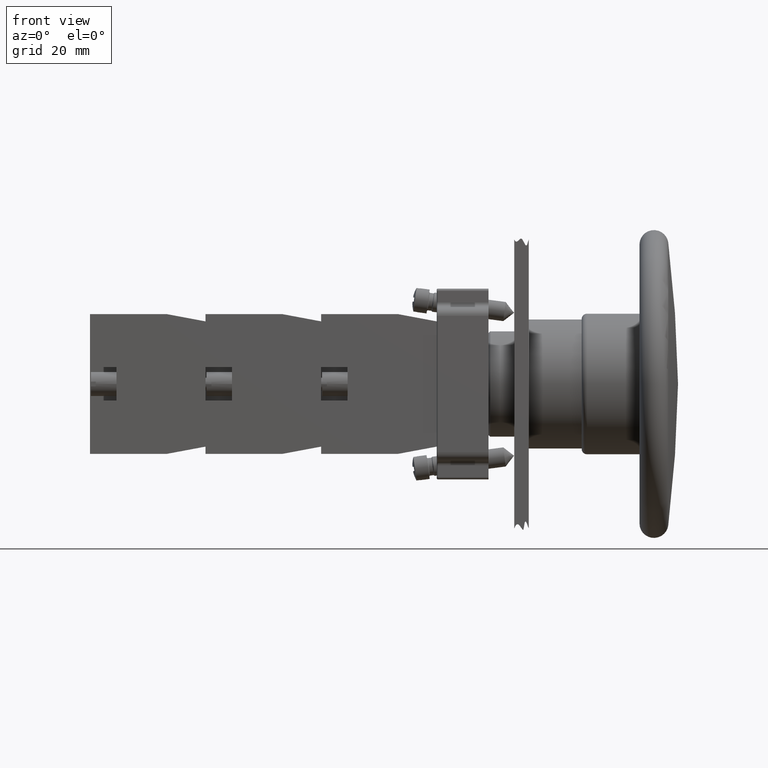
[diagram: clean part render]
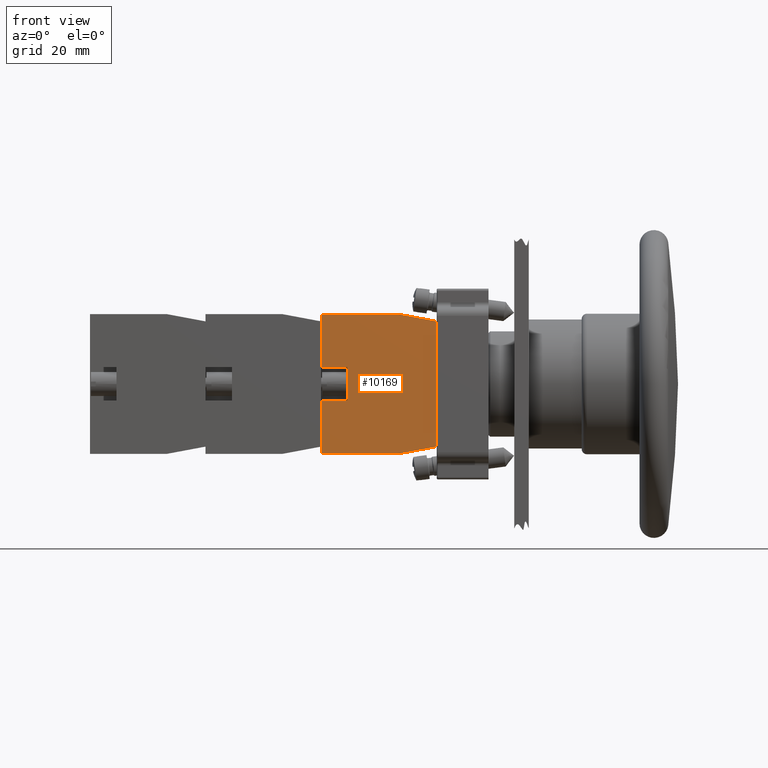
[diagram: same view with one face highlighted and labeled with its STEP entity id]
A machine part, front view. The second image highlights one B-rep face of the part: STEP entity #10169.
In plain terms, the highlighted planar face has unit normal (-0, -1, 0).
Its self-contained STEP definition (entity closure, byte-faithful):
#8472=CARTESIAN_POINT('',(-44.936741828918457,7.797073323279626,14.699999999999999));
#8473=VERTEX_POINT('',#8472);
#8480=CARTESIAN_POINT('',(-44.936741828918471,23.797073323279623,14.699999999999999));
#8481=VERTEX_POINT('',#8480);
#8482=CARTESIAN_POINT('',(-44.936741828918457,7.797073323279626,14.699999999999999));
#8483=DIRECTION('',(0.0,1.0,0.0));
#8484=VECTOR('',#8483,15.999999999999996);
#8485=LINE('',#8482,#8484);
#8486=EDGE_CURVE('',#8473,#8481,#8485,.T.);
#8553=CARTESIAN_POINT('',(-43.436741828918457,-0.202926676720380,14.699999999999999));
#8554=VERTEX_POINT('',#8553);
#8561=CARTESIAN_POINT('',(-43.436741828918457,-0.202926676720380,14.699999999999999));
#8562=DIRECTION('',(-0.184288535050185,0.982872186934322,0.0));
#8563=VECTOR('',#8562,8.139410298049860);
#8564=LINE('',#8561,#8563);
#8565=EDGE_CURVE('',#8554,#8473,#8564,.T.);
#8704=CARTESIAN_POINT('',(-17.436741828918457,-0.202926676720377,14.699999999999999));
#8705=VERTEX_POINT('',#8704);
#8712=CARTESIAN_POINT('',(-17.436741828918457,-0.202926676720377,14.699999999999999));
#8713=DIRECTION('',(-1.0,0.0,0.0));
#8714=VECTOR('',#8713,26.0);
#8715=LINE('',#8712,#8714);
#8716=EDGE_CURVE('',#8705,#8554,#8715,.T.);
#8797=CARTESIAN_POINT('',(-15.936741828918466,7.797073323279626,14.699999999999999));
#8798=VERTEX_POINT('',#8797);
#8805=CARTESIAN_POINT('',(-15.936741828918466,7.797073323279626,14.699999999999999));
#8806=DIRECTION('',(-0.184288535050184,-0.982872186934322,0.0));
#8807=VECTOR('',#8806,8.139410298049855);
#8808=LINE('',#8805,#8807);
#8809=EDGE_CURVE('',#8798,#8705,#8808,.T.);
#9904=CARTESIAN_POINT('',(-26.936741828918468,18.297073323279626,14.699999999999999));
#9905=VERTEX_POINT('',#9904);
#9914=CARTESIAN_POINT('',(-26.936741828918468,23.797073323279626,14.699999999999999));
#9915=VERTEX_POINT('',#9914);
#9916=CARTESIAN_POINT('',(-26.936741828918468,23.797073323279626,14.699999999999999));
#9917=DIRECTION('',(0.0,-1.0,0.0));
#9918=VECTOR('',#9917,5.500000000000000);
#9919=LINE('',#9916,#9918);
#9920=EDGE_CURVE('',#9915,#9905,#9919,.T.);
#9975=CARTESIAN_POINT('',(-33.936741828918464,18.297073323279619,14.699999999999999));
#9976=VERTEX_POINT('',#9975);
#9984=CARTESIAN_POINT('',(-33.936741828918464,23.797073323279623,14.699999999999999));
#9985=VERTEX_POINT('',#9984);
#9992=CARTESIAN_POINT('',(-33.936741828918464,18.297073323279619,14.699999999999999));
#9993=DIRECTION('',(0.0,1.0,0.0));
#9994=VECTOR('',#9993,5.500000000000004);
#9995=LINE('',#9992,#9994);
#9996=EDGE_CURVE('',#9976,#9985,#9995,.T.);
#10009=CARTESIAN_POINT('',(-26.936741828918468,18.297073323279626,14.699999999999999));
#10010=DIRECTION('',(-1.0,0.0,0.0));
#10011=VECTOR('',#10010,6.999999999999996);
#10012=LINE('',#10009,#10011);
#10013=EDGE_CURVE('',#9905,#9976,#10012,.T.);
#10029=CARTESIAN_POINT('',(-15.936741828918466,23.797073323279626,14.699999999999999));
#10030=VERTEX_POINT('',#10029);
#10031=CARTESIAN_POINT('',(-26.936741828918468,23.797073323279626,14.699999999999999));
#10032=DIRECTION('',(1.0,0.0,0.0));
#10033=VECTOR('',#10032,11.000000000000002);
#10034=LINE('',#10031,#10033);
#10035=EDGE_CURVE('',#9915,#10030,#10034,.T.);
#10052=CARTESIAN_POINT('',(-44.936741828918471,23.797073323279623,14.699999999999999));
#10053=DIRECTION('',(1.0,0.0,0.0));
#10054=VECTOR('',#10053,11.000000000000007);
#10055=LINE('',#10052,#10054);
#10056=EDGE_CURVE('',#8481,#9985,#10055,.T.);
#10100=CARTESIAN_POINT('',(-15.936741828918466,23.797073323279626,14.699999999999999));
#10101=DIRECTION('',(0.0,-1.0,0.0));
#10102=VECTOR('',#10101,16.0);
#10103=LINE('',#10100,#10102);
#10104=EDGE_CURVE('',#10030,#8798,#10103,.T.);
#10152=CARTESIAN_POINT('',(-30.436741828918457,12.124046801833057,14.699999999999999));
#10153=DIRECTION('',(0.0,0.0,1.0));
#10154=DIRECTION('',(1.0,0.0,0.0));
#10155=AXIS2_PLACEMENT_3D('',#10152,#10153,#10154);
#10156=PLANE('',#10155);
#10157=ORIENTED_EDGE('',*,*,#9996,.T.);
#10158=ORIENTED_EDGE('',*,*,#10056,.F.);
#10159=ORIENTED_EDGE('',*,*,#8486,.F.);
#10160=ORIENTED_EDGE('',*,*,#8565,.F.);
#10161=ORIENTED_EDGE('',*,*,#8716,.F.);
#10162=ORIENTED_EDGE('',*,*,#8809,.F.);
#10163=ORIENTED_EDGE('',*,*,#10104,.F.);
#10164=ORIENTED_EDGE('',*,*,#10035,.F.);
#10165=ORIENTED_EDGE('',*,*,#9920,.T.);
#10166=ORIENTED_EDGE('',*,*,#10013,.T.);
#10167=EDGE_LOOP('',(#10157,#10158,#10159,#10160,#10161,#10162,#10163,#10164,#10165,#10166));
#10168=FACE_OUTER_BOUND('',#10167,.T.);
#10169=ADVANCED_FACE('',(#10168),#10156,.T.);